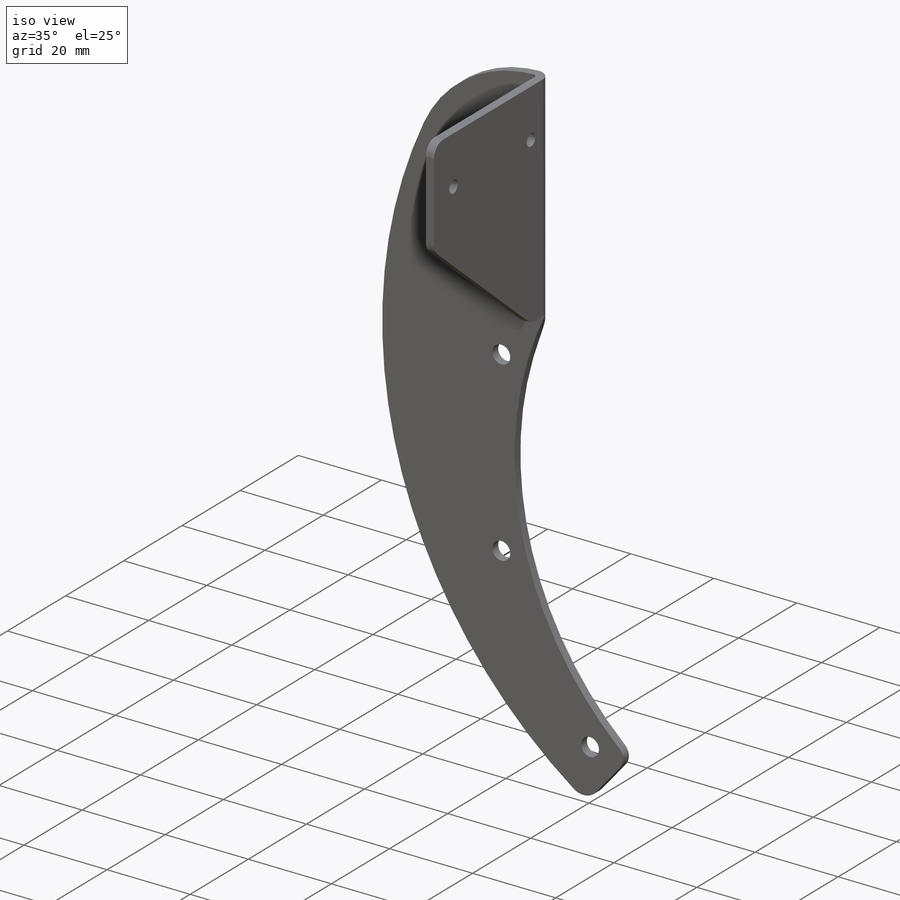
[diagram: iso view]
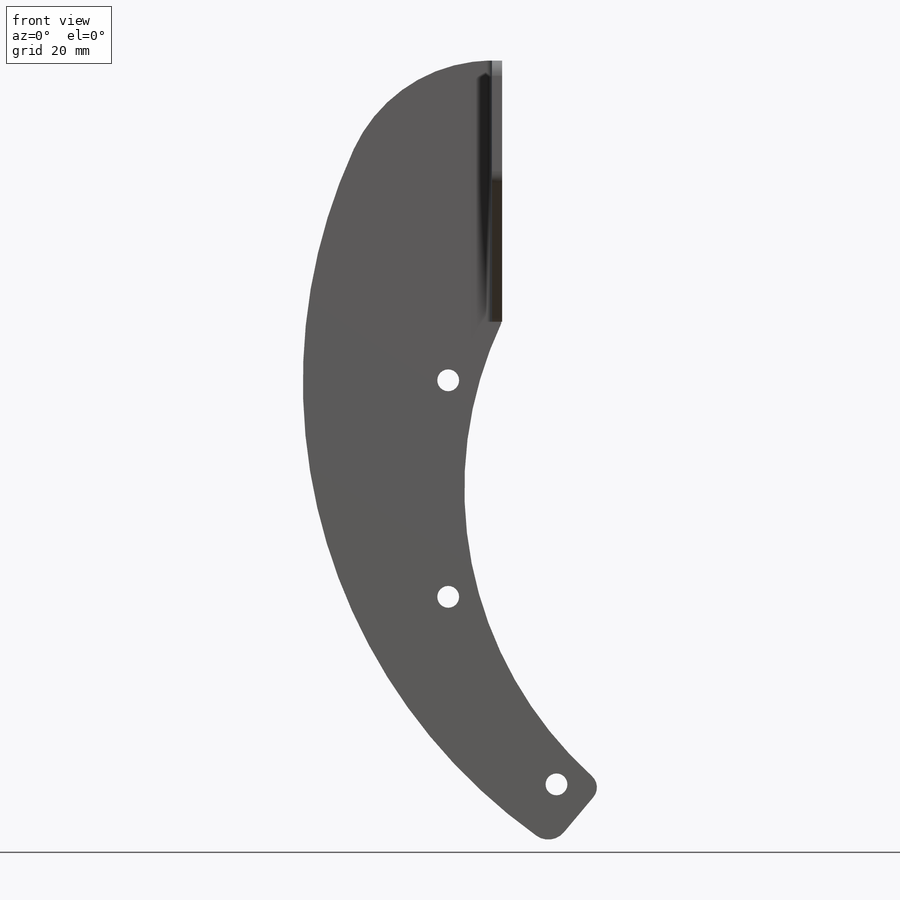
[diagram: front view]
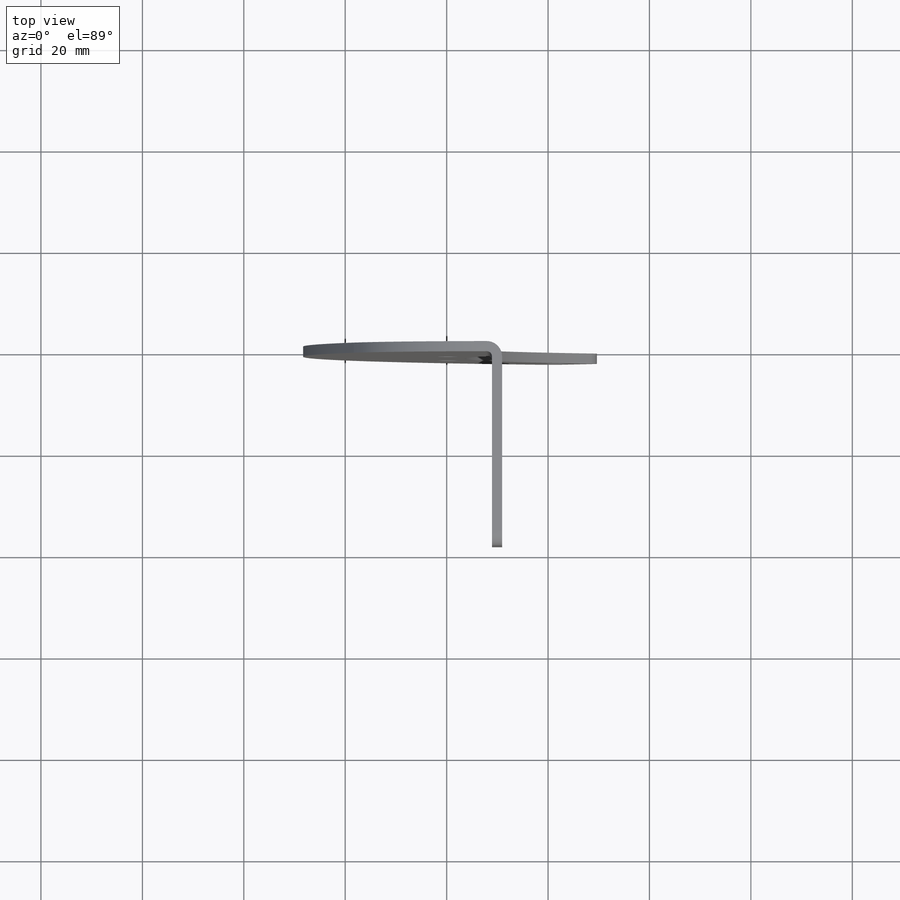
[diagram: top view]
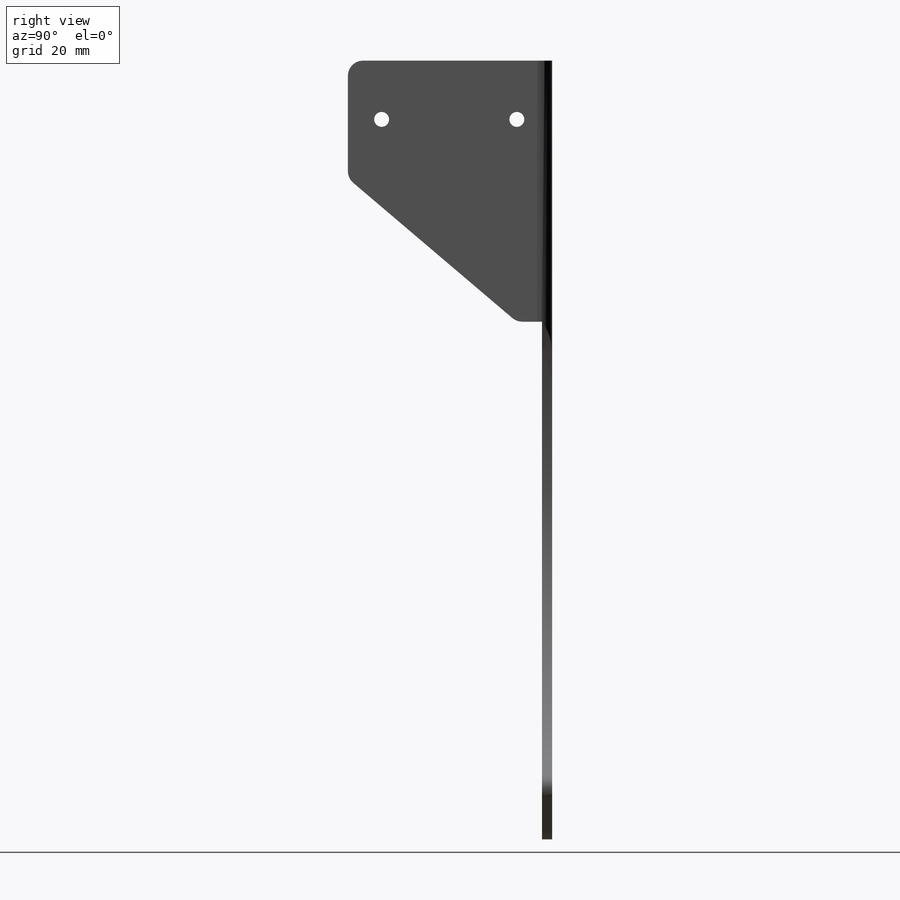
[diagram: right view]
SOLIDWORKS PART (.sldprt)
format: sldprt  version: not decoded by parser v0  size: 300,032 bytes
history: native  units: mm
features: sketch x7, fillet x4, extrude x2, hole x2, material x1, cut_extrude x1 (+11 scaffold rows collapsed)
feature tree (28):
  scaffold x11  (default folders/planes/origin — collapsed)
  material  "6061-T6 (SS)"
  sketch  "Sketch1"  dims[c1.D1=153.0mm c1.D2=165.0mm c1.D3=165.0mm c1.D12=20.0mm c1.D11=110.0mm c2.D12=30.0mm c2.D13=4.0mm c2.D14=4.0mm c2.D3=69.062mm c2.D4=61.2mm c2.D5=~119.545309mm c3.D5=15.0deg c3.D6=~115.471902mm c4.D6=30.0deg c4.D7=~92.438954mm c5.D7=30.0deg c6.D7=~102.087273mm c7.D7=30.0deg c7.D8=~23.207732mm c7.D9=6.4mm c8.D9=~9.835635deg c9.D9=6.4mm c10.D9=5.0deg c10.D10=~102.087273mm c11.D10=10.0deg c11.D11=58.0mm c12.D10=~110.300286mm c13.D10=5.0deg c13.D15=2.0mm c13.D4=~84.407732mm]
  extrude  "Boss-Extrude1"  Depth=2mm
  sketch  "Sketch2"  dims[D1=2.0mm]
  extrude  "Boss-Extrude2"  Depth=38.3mm
  hole  "#8 Clearance Hole1"  Diameter=4.3053mm Depth=2mm
  sketch  "Sketch4"
  sketch  "Sketch3"  dims[hole-wizard template sketch: 60 standard entries collapsed; hole parameters kept: c18.Thru Hole Depth=2.0mm]
  fillet  "Fillet1"  Radius=1mm
  fillet  "Fillet2"  Radius=3mm
  fillet  "Fillet3"  Radius=3mm
  hole  "#4 Clearance Hole1"  Diameter=2.9464mm Depth=29.83mm
  sketch  "Sketch6"  dims[D1=20.0mm D2=~13.333333mm D3=~11.603866mm]
  sketch  "Sketch5"  dims[hole-wizard template sketch: 47 standard entries collapsed; hole parameters kept: c15.Hole Depth=29.83mm c15.D3=~14.816244mm c15.Drill Angle=118.0deg]
  sketch  "Sketch7"  dims[D1=7.0mm D2=~23.207732mm]
  cut_extrude  "Cut-Extrude1"  [1 undecoded]
  fillet  "Fillet4"  Radius=3mm
decode coverage: 14 of 16 modeling features carry decoded parameters
note: ~ marks probable driven/reference dimensions
note: 1 parameter value undecoded
note: suppression state not decoded; provenance and decode notes live in map.json
